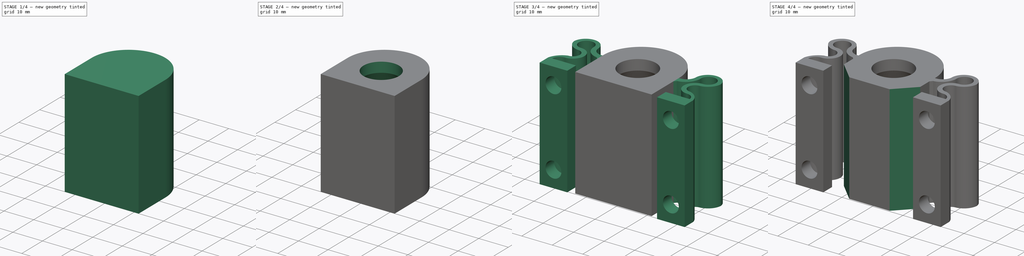
[diagram: build sequence overview — one tinted view per stage of 4, left to right]
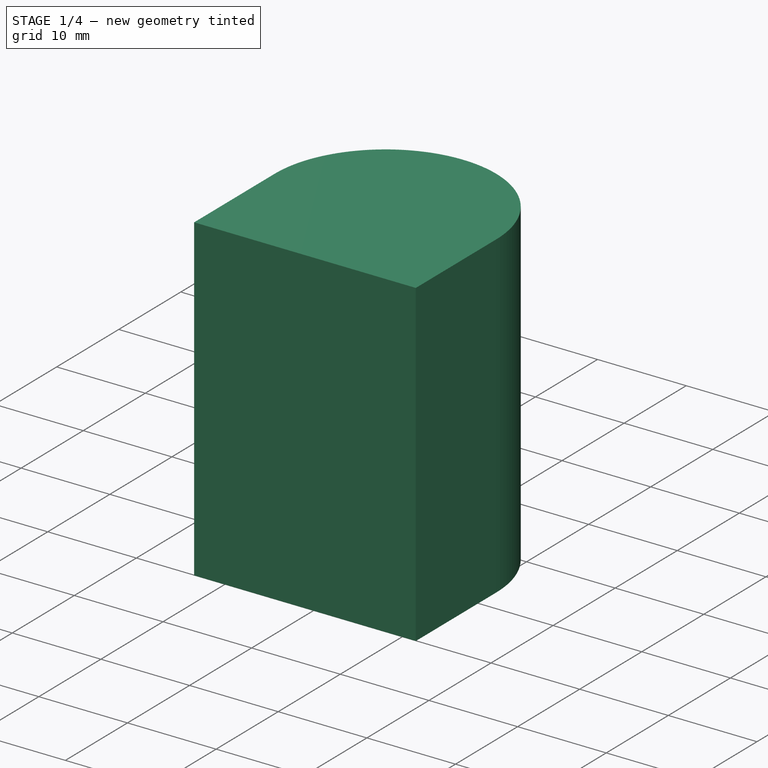
[diagram: stage 1 of 4 — iso view after this stage's code; geometry added in this stage tinted green]
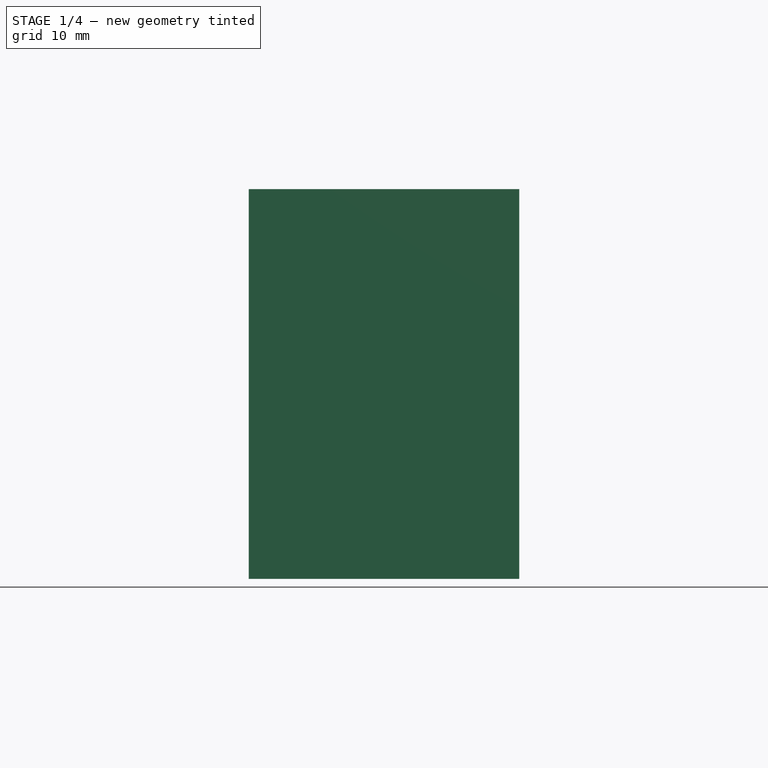
[diagram: stage 1 of 4 — front view after this stage's code; geometry added in this stage tinted green]
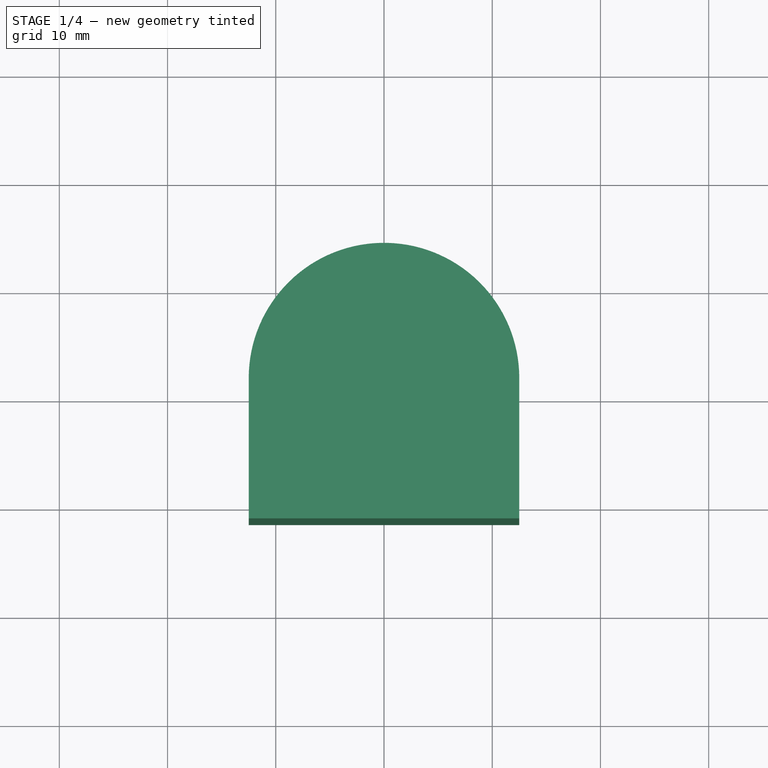
[diagram: stage 1 of 4 — top view after this stage's code; geometry added in this stage tinted green]
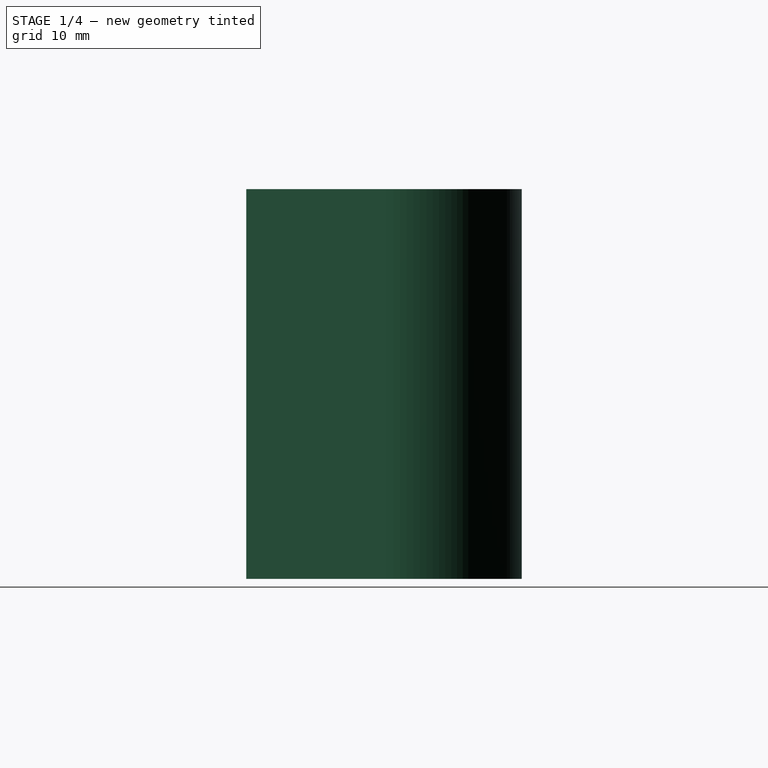
[diagram: stage 1 of 4 — right view after this stage's code; geometry added in this stage tinted green]
FCSTD DOCUMENT
Label: Z_NutSpring
objects: Sketcher::SketchObject×10, PartDesign::Pocket×6, PartDesign::Pad×3, PartDesign::Mirrored×2, PartDesign::Groove×1, PartDesign::Chamfer×1, Part::Feature×1
note: 34 computed .brp shape members not serialized (recipe doc carries the construction recipe); baked Part::Feature solids carry a one-line shape summary decoded from their .brp

FEATURE [Sketcher::SketchObject] Sketch
  sketch-geometry (5):
    g0: LineSegment StartX=12.5 StartY=1.55997 StartZ=0 EndX=12.5 EndY=-11.4 EndZ=0
    g1: LineSegment StartX=12.5 StartY=-11.4 StartZ=0 EndX=-12.5 EndY=-11.4 EndZ=0
    g2: LineSegment StartX=-12.5 StartY=-11.4 StartZ=0 EndX=-12.5 EndY=1.55997 EndZ=0
    g3: ArcOfCircle CenterX=0 CenterY=1.56 CenterZ=0 NormalX=0 NormalY=0 NormalZ=1 Radius=12.5 StartAngle=6.28318 EndAngle=9.42478
    g4: LineSegment [constr] StartX=0 StartY=1.56 StartZ=0 EndX=0 EndY=14.06 EndZ=0
  constraints (16):
    c: Coincident(g0,g1)
    c: Coincident(g1,g2)
    c: Horizontal(g1)
    c: Vertical(g0)
    c: Vertical(g2)
    c: DistanceX(g1) = -25
    c: Coincident(g3,g2)
    c: Coincident(g3,g0)
    c: Tangent(g2,g3)
    c: Tangent(g3,g0)
    c: Vertical(g4)
    c: PointOnObject(g4,g3)
    c: Coincident(g3,g4)
    c: DistanceY(g1,g4) = 25.46
    c: DistanceY(g4) = 14.06
    c: PointOnObject(g3,g-2)
FEATURE [PartDesign::Pad] Pad
  Length = 36
  Length2 = 100
  Sketch = -> Sketch
  Type = 0
FEATURE [Sketcher::SketchObject] Sketch001
  Placement = pos=(0,0,0) rot=(1,0,0;3.14159rad)
  Support = -> Pad [Face5]
  sketch-geometry (1):
    g0: Circle CenterX=0 CenterY=0 CenterZ=0 NormalX=0 NormalY=0 NormalZ=1 Radius=7.5
  constraints (2):
    c: Coincident(g0,g-1)
    c: Radius(g0) = 7.5
FEATURE [PartDesign::Pocket] Pocket
  Length = 7
  Sketch = -> Sketch001
  Type = 0
FEATURE [Sketcher::SketchObject] Sketch002
  Placement = pos=(0,0,7) rot=(1,0,0;3.14159rad)
  Support = -> Pocket [Face8]
  sketch-geometry (7):
    g0: Circle [constr] CenterX=0 CenterY=0 CenterZ=0 NormalX=0 NormalY=0 NormalZ=1 Radius=11.5
    g1: LineSegment StartX=-5.75 StartY=9.95929 StartZ=0 EndX=5.75 EndY=9.95929 EndZ=0
    g2: LineSegment StartX=5.75 StartY=9.95929 StartZ=0 EndX=11.5 EndY=0 EndZ=0
    g3: LineSegment StartX=11.5 StartY=0 StartZ=0 EndX=5.75 EndY=-9.95929 EndZ=0
    g4: LineSegment StartX=5.75 StartY=-9.95929 StartZ=0 EndX=-5.75 EndY=-9.95929 EndZ=0
    g5: LineSegment StartX=-5.75 StartY=-9.95929 StartZ=0 EndX=-11.5 EndY=0 EndZ=0
    g6: LineSegment StartX=-11.5 StartY=0 StartZ=0 EndX=-5.75 EndY=9.95929 EndZ=0
  constraints (20):
    c: Coincident(g0,g-1)
    c: Horizontal(g1)
    c: Coincident(g1,g2)
    c: Coincident(g2,g3)
    c: Coincident(g3,g4)
    c: Horizontal(g4)
    c: Coincident(g4,g5)
    c: Coincident(g5,g6)
    c: Coincident(g6,g1)
    c: Equal(g1,g6)
    c: Equal(g6,g5)
    c: Equal(g5,g4)
    c: Equal(g4,g3)
    c: Equal(g3,g2)
    c: PointOnObject(g2,g-1)
    c: PointOnObject(g5,g-1)
    c: PointOnObject(g1,g0)
    c: PointOnObject(g1,g0)
    c: PointOnObject(g2,g0)
    c: Radius(g0) = 11.5
FEATURE [PartDesign::Pocket] Pocket001
  Length = 21.1
  Sketch = -> Sketch002
  Type = 0
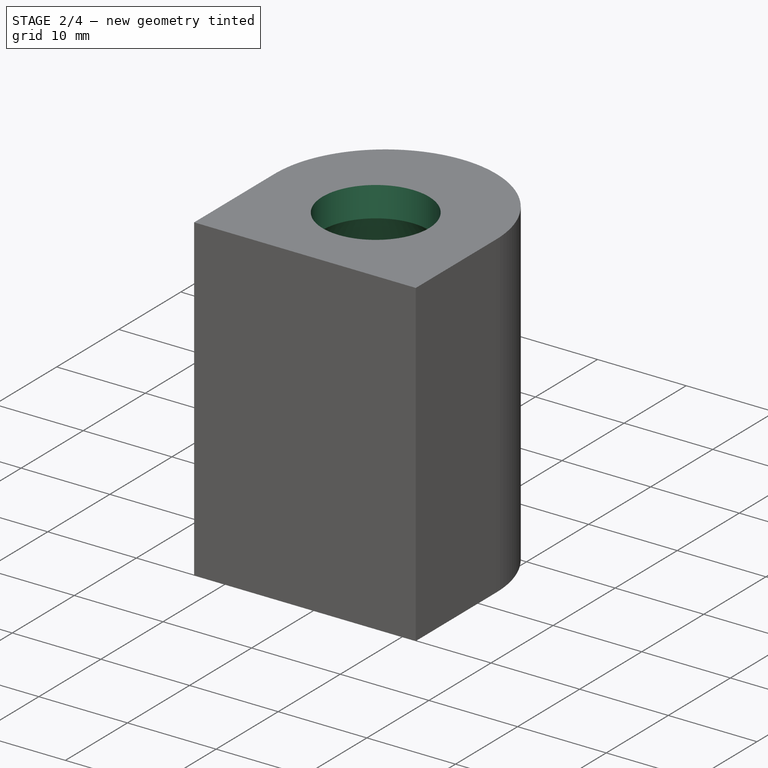
[diagram: stage 2 of 4 — iso view after this stage's code; geometry added in this stage tinted green]
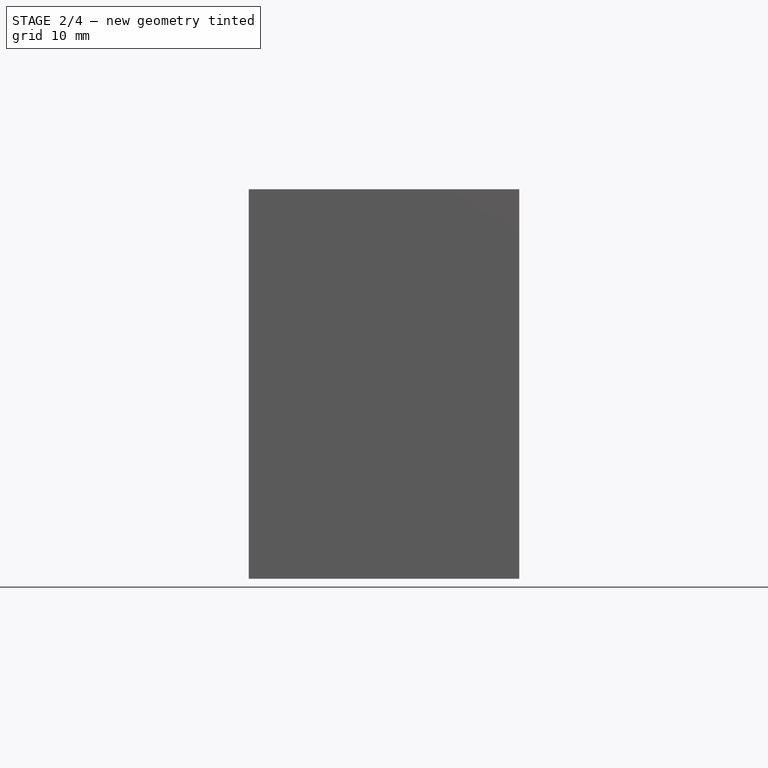
[diagram: stage 2 of 4 — front view after this stage's code; geometry added in this stage tinted green]
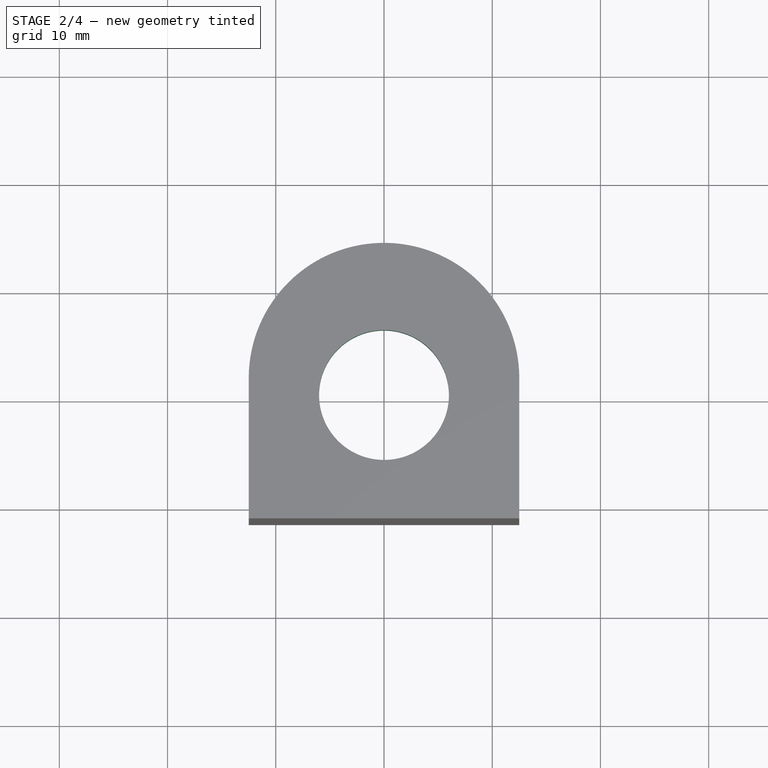
[diagram: stage 2 of 4 — top view after this stage's code; geometry added in this stage tinted green]
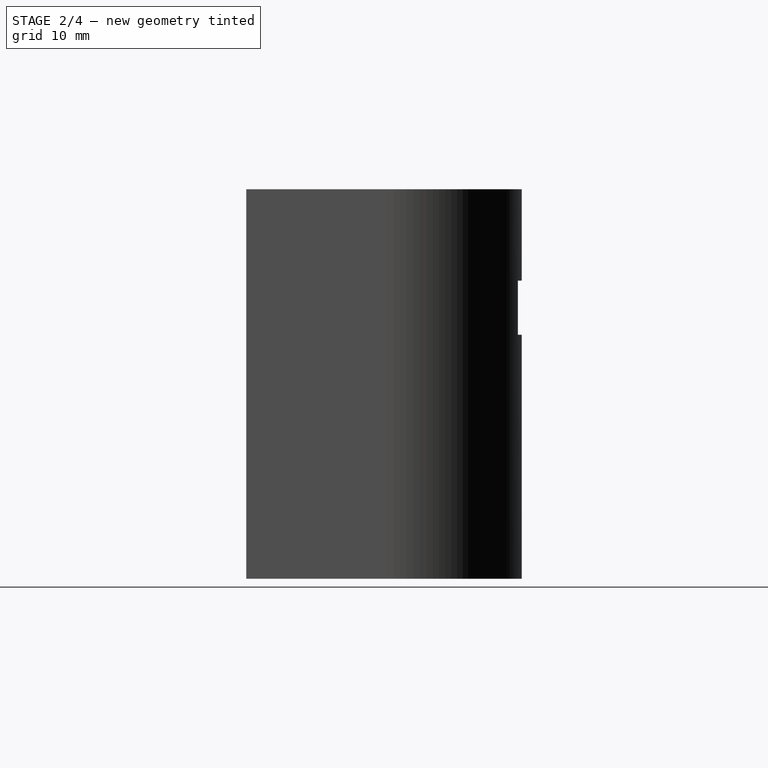
[diagram: stage 2 of 4 — right view after this stage's code; geometry added in this stage tinted green]
FEATURE [Sketcher::SketchObject] Sketch003
  Placement = pos=(0,0,36) rot=(0,0,1;0rad)
  Support = -> Pocket001 [Face5]
  sketch-geometry (4):
    g0: LineSegment StartX=-2.5 StartY=-2 StartZ=0 EndX=2.5 EndY=-2 EndZ=0
    g1: LineSegment StartX=2.5 StartY=-2 StartZ=0 EndX=2.5 EndY=0 EndZ=0
    g2: LineSegment StartX=2.5 StartY=0 StartZ=0 EndX=-2.5 EndY=0 EndZ=0
    g3: LineSegment StartX=-2.5 StartY=0 StartZ=0 EndX=-2.5 EndY=-2 EndZ=0
  constraints (12):
    c: Coincident(g0,g1)
    c: Coincident(g1,g2)
    c: Coincident(g2,g3)
    c: Coincident(g3,g0)
    c: Horizontal(g0)
    c: Horizontal(g2)
    c: Vertical(g1)
    c: Vertical(g3)
    c: Symmetric(g2,g1,g-2)
    c: DistanceY(g1) = 2
    c: DistanceX(g2) = -5
    c: PointOnObject(g2,g-1)
FEATURE [PartDesign::Pocket] Pocket002
  Length = 5
  Sketch = -> Sketch003
  Type = 1
FEATURE [Sketcher::SketchObject] Sketch007
  Placement = pos=(0,0,0) rot=(1,0,0;1.5708rad)
  Support = -> Pocket002 [Face10]
  sketch-geometry (4):
    g0: LineSegment StartX=-3 StartY=27.55 StartZ=0 EndX=3 EndY=27.55 EndZ=0
    g1: LineSegment StartX=3 StartY=27.55 StartZ=0 EndX=3 EndY=22.55 EndZ=0
    g2: LineSegment StartX=3 StartY=22.55 StartZ=0 EndX=-3 EndY=22.55 EndZ=0
    g3: LineSegment StartX=-3 StartY=22.55 StartZ=0 EndX=-3 EndY=27.55 EndZ=0
  constraints (12):
    c: Coincident(g0,g1)
    c: Coincident(g1,g2)
    c: Coincident(g2,g3)
    c: Coincident(g3,g0)
    c: Horizontal(g0)
    c: Horizontal(g2)
    c: Vertical(g1)
    c: Vertical(g3)
    c: Symmetric(g0,g0,g-2)
    c: DistanceY(g1) = 22.55
    c: DistanceX(g2) = -6
    c: DistanceY(g1) = -5
FEATURE [PartDesign::Pocket] Pocket003
  Length = 5
  Sketch = -> Sketch007
  Type = 1
FEATURE [Sketcher::SketchObject] Sketch004
  ExternalGeometry = -> [Pocket003]
  Placement = pos=(0,0,0) rot=(1,0,0;1.5708rad)
  Support = -> Pocket003 [Face14]
  sketch-geometry (4):
    g0: LineSegment StartX=0 StartY=36 StartZ=0 EndX=6 EndY=36 EndZ=0
    g1: LineSegment StartX=6 StartY=36 StartZ=0 EndX=6 EndY=32.6 EndZ=0
    g2: LineSegment StartX=6 StartY=32.6 StartZ=0 EndX=9 EndY=28.1 EndZ=0
    g3: LineSegment StartX=9 StartY=28.1 StartZ=0 EndX=0 EndY=28.1 EndZ=0
  constraints (13):
    c: Horizontal(g0)
    c: Coincident(g0,g1)
    c: Vertical(g1)
    c: Coincident(g1,g2)
    c: Coincident(g2,g3)
    c: Horizontal(g3)
    c: PointOnObject(g0,g-2)
    c: PointOnObject(g3,g-2)
    c: DistanceX(g3) = -9
    c: DistanceX(g0) = 6
    c: DistanceY(g1) = -3.4
    c: PointOnObject(g-4,g3)
    c: PointOnObject(g-3,g0)
FEATURE [PartDesign::Groove] Groove
  Angle = 360
  Axis = (0,0,1)
  Base = (0,0,0)
  ReferenceAxis = -> Sketch004 [V_Axis]
  Sketch = -> Sketch004
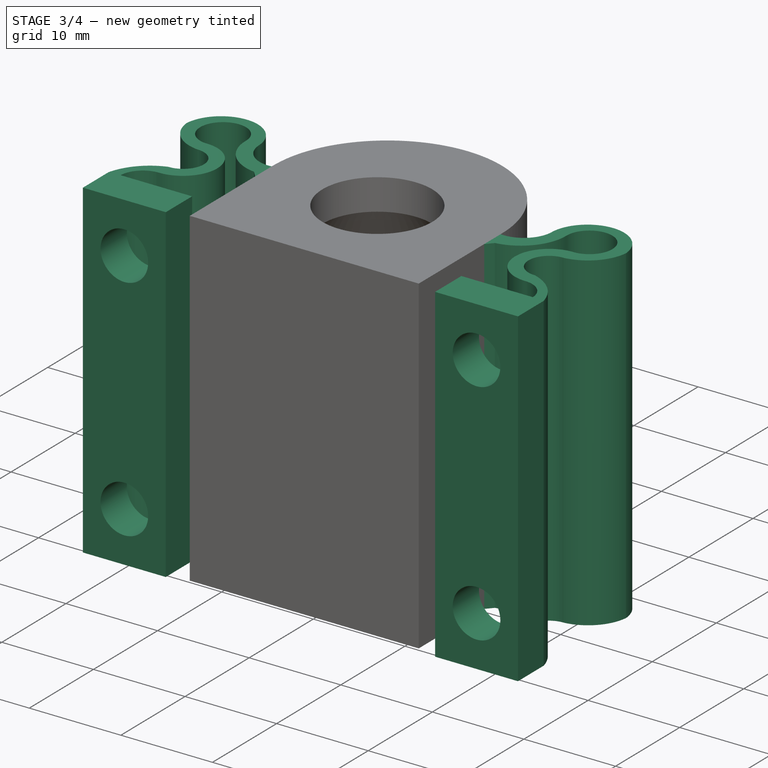
[diagram: stage 3 of 4 — iso view after this stage's code; geometry added in this stage tinted green]
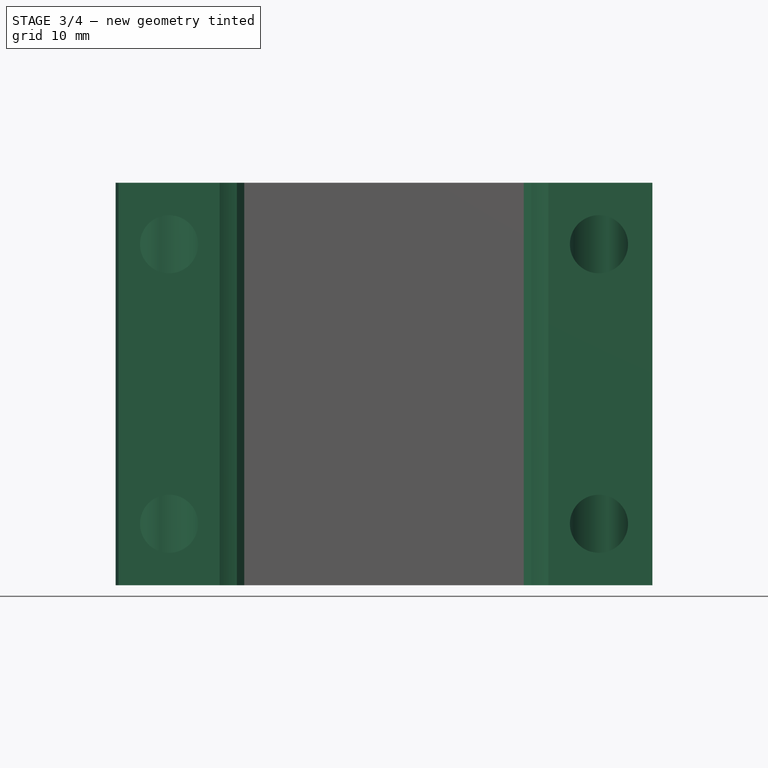
[diagram: stage 3 of 4 — front view after this stage's code; geometry added in this stage tinted green]
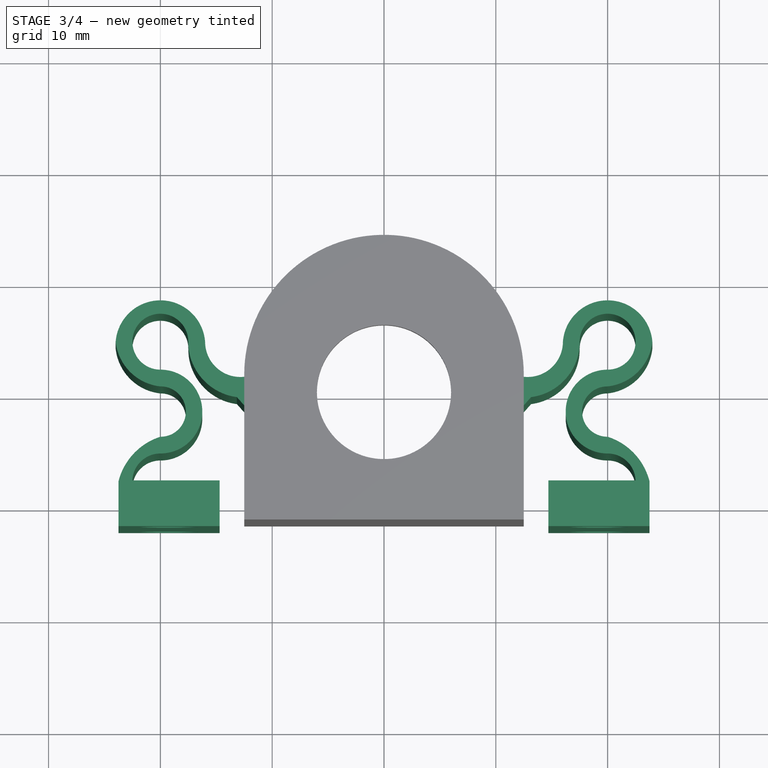
[diagram: stage 3 of 4 — top view after this stage's code; geometry added in this stage tinted green]
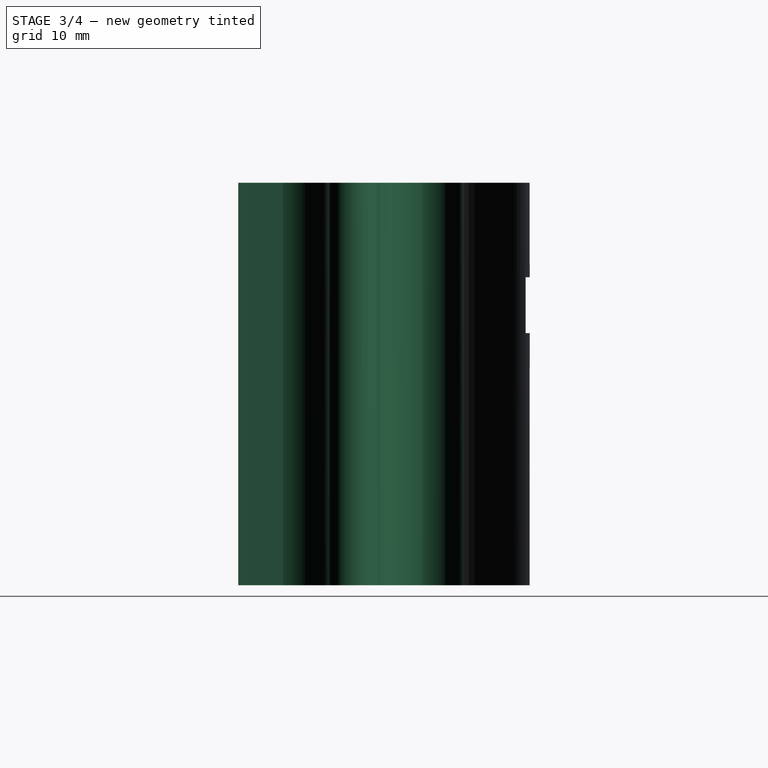
[diagram: stage 3 of 4 — right view after this stage's code; geometry added in this stage tinted green]
FEATURE [Sketcher::SketchObject] Sketch005
  ExternalGeometry = -> [Groove]
  Placement = pos=(0,0,36) rot=(0,0,1;0rad)
  Support = -> Groove [Face5]
  sketch-geometry (18):
    g0: ArcOfCircle CenterX=-12.844 CenterY=4.5 CenterZ=0 NormalX=0 NormalY=0 NormalZ=1 Radius=3.156 StartAngle=3.14159 EndAngle=4.8216
    g1: LineSegment [constr] StartX=-12.844 StartY=4.5 StartZ=0 EndX=-16 EndY=4.5 EndZ=0
    g2: LineSegment StartX=-12.5 StartY=1.3628 StartZ=0 EndX=-12.5 EndY=-1.2 EndZ=0
    g3: ArcOfCircle CenterX=-19.9998 CenterY=4.188 CenterZ=0 NormalX=0 NormalY=0 NormalZ=1 Radius=4.012 StartAngle=0.0778453 EndAngle=3.06471
    g4: ArcOfCircle CenterX=-19.513 CenterY=4.987 CenterZ=0 NormalX=0 NormalY=0 NormalZ=1 Radius=4.51377 StartAngle=3.25056 EndAngle=4.60429
    g5: ArcOfCircle CenterX=-19.9692 CenterY=-1.75021 CenterZ=0 NormalX=0 NormalY=0 NormalZ=1 Radius=2.25 StartAngle=4.6987 EndAngle=7.86767
    g6: LineSegment [constr] StartX=-20 StartY=0.499578 StartZ=0 EndX=-20 EndY=-4 EndZ=0
    g7: ArcOfCircle CenterX=-18.2759 CenterY=-9.3742 CenterZ=0 NormalX=0 NormalY=0 NormalZ=1 Radius=5.644 StartAngle=1.88124 EndAngle=2.89564
    g8: LineSegment StartX=-23.75 StartY=-8 StartZ=0 EndX=-23.75 EndY=-12 EndZ=0
    g9: LineSegment StartX=-23.75 StartY=-12 StartZ=0 EndX=-14.7 EndY=-12 EndZ=0
    g10: LineSegment StartX=-14.7 StartY=-12 StartZ=0 EndX=-14.7 EndY=-7.9 EndZ=0
    g11: LineSegment StartX=-14.7 StartY=-7.9 StartZ=0 EndX=-22.5 EndY=-7.9 EndZ=0
    g12: ArcOfCircle CenterX=-20 CenterY=4.5 CenterZ=0 NormalX=0 NormalY=0 NormalZ=1 Radius=2.5 StartAngle=0 EndAngle=4.71239
    g13: ArcOfCircle CenterX=-11.438 CenterY=4.5017 CenterZ=0 NormalX=0 NormalY=0 NormalZ=1 Radius=6.062 StartAngle=3.14187 EndAngle=3.28123
    g14: ArcOfCircle CenterX=-12.5127 CenterY=4.50183 CenterZ=0 NormalX=0 NormalY=0 NormalZ=1 Radius=5 StartAngle=3.31117 EndAngle=4.58398
    g15: LineSegment StartX=-13.153 StartY=-0.457 StartZ=0 EndX=-12.5 EndY=-1.2 EndZ=0
    g16: ArcOfCircle CenterX=-20 CenterY=-1.75 CenterZ=0 NormalX=0 NormalY=0 NormalZ=1 Radius=3.75 StartAngle=4.71239 EndAngle=7.85398
    g17: ArcOfCircle CenterX=-20 CenterY=-8.00208 CenterZ=0 NormalX=0 NormalY=0 NormalZ=1 Radius=2.50208 StartAngle=1.5708 EndAngle=3.10078
  constraints (62):
    c: Coincident(g1,g0)
    c: Coincident(g1,g0)
    c: Horizontal(g1)
    c: Coincident(g2,g0)
    c: Vertical(g2)
    c: DistanceY(g-1,g0) = 4.5
    c: DistanceX(g-1,g0) = -16
    c: Radius(g0) = 3.156
    c: Coincident(g3,g0)
    c: DistanceY(g-1,g3) = 4.188
    c: DistanceX(g0,g3) = -8
    c: Radius(g3) = 4.012
    c: Coincident(g4,g3)
    c: DistanceX(g-1,g4) = -19.513
    c: DistanceY(g-1,g4) = 4.987
    c: DistanceX(g4) = -20
    c: Coincident(g5,g4)
    c: Radius(g5) = 2.25
    c: DistanceY(g5) = -4
    c: Coincident(g6,g4)
    c: Coincident(g6,g5)
    c: Vertical(g6)
    c: Coincident(g7,g5)
    c: Coincident(g8,g7)
    c: Vertical(g8)
    c: DistanceX(g8) = -23.75
    c: Radius(g7) = 5.644
    c: DistanceY(g7) = -8
    c: DistanceY(g8) = -12
    c: Coincident(g8,g9)
    c: Horizontal(g9)
    c: Vertical(g10)
    c: DistanceX(g9) = 9.05
    c: Coincident(g10,g9)
    c: DistanceY(g10) = 4.1
    c: Coincident(g11,g10)
    c: Horizontal(g11)
    c: Radius(g12) = 2.5
    c: DistanceX(g12) = -20
    c: PointOnObject(g12,g1)
    c: Coincident(g13,g12)
    c: PointOnObject(g12,g1)
    c: Radius(g13) = 6.062
    c: Coincident(g14,g13)
    c: Radius(g14) = 5
    c: DistanceX(g13,g12) = -2.559
    c: DistanceY(g13,g12) = 0.842
    c: DistanceX(g14) = -13.153
    c: DistanceY(g14) = -0.457
    c: Coincident(g15,g14)
    c: Coincident(g15,g2)
    c: DistanceY(g2) = -1.2
    c: Coincident(g16,g12)
    c: Radius(g16) = 3.75
    c: PointOnObject(g16,g6)
    c: PointOnObject(g12,g6)
    c: PointOnObject(g16,g6)
    c: DistanceX(g11) = -7.8
    c: Coincident(g17,g16)
    c: Coincident(g17,g11)
    c: Tangent(g17,g16)
    c: PointOnObject(g-3,g2)
FEATURE [PartDesign::Pad] Pad001
  Length = 10
  Length2 = 100
  Reversed = true
  Sketch = -> Sketch005
  Type = 3
  UpToFace = -> Groove [Face4]
FEATURE [PartDesign::Mirrored] Mirrored
  Originals = -> [Pad001]
  StdMirrorPlane = YZ
FEATURE [Sketcher::SketchObject] Sketch006
  ExternalGeometry = -> [Mirrored]
  Placement = pos=(0,-12,0) rot=(1,0,0;1.5708rad)
  Support = -> Mirrored [Face50]
  sketch-geometry (4):
    g0: Circle CenterX=-19.225 CenterY=30.5 CenterZ=0 NormalX=0 NormalY=0 NormalZ=1 Radius=2.6
    g1: LineSegment [constr] StartX=-19.225 StartY=30.5 StartZ=0 EndX=-19.225 EndY=5.5 EndZ=0
    g2: Circle CenterX=-19.225 CenterY=5.5 CenterZ=0 NormalX=0 NormalY=0 NormalZ=1 Radius=2.6
    g3: LineSegment [constr] StartX=-19.225 StartY=30.5 StartZ=0 EndX=-19.225 EndY=36 EndZ=0
  constraints (10):
    c: Coincident(g1,g0)
    c: Vertical(g1)
    c: Coincident(g2,g1)
    c: Equal(g2,g0)
    c: DistanceY(g1) = -25
    c: Radius(g0) = 2.6
    c: DistanceY(g1) = 5.5
    c: Coincident(g3,g0)
    c: Vertical(g3)
    c: Symmetric(g-3,g-3,g3)
FEATURE [PartDesign::Pocket] Pocket004
  Length = 5
  Sketch = -> Sketch006
  Type = 0
FEATURE [PartDesign::Mirrored] Mirrored001
  Originals = -> [Pocket004]
  StdMirrorPlane = YZ
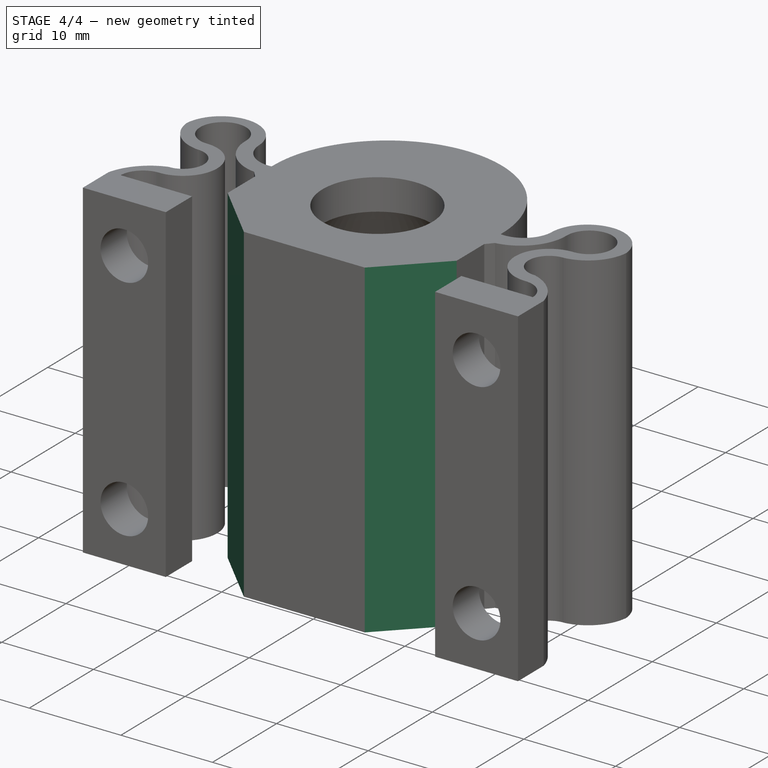
[diagram: stage 4 of 4 — iso view after this stage's code; geometry added in this stage tinted green]
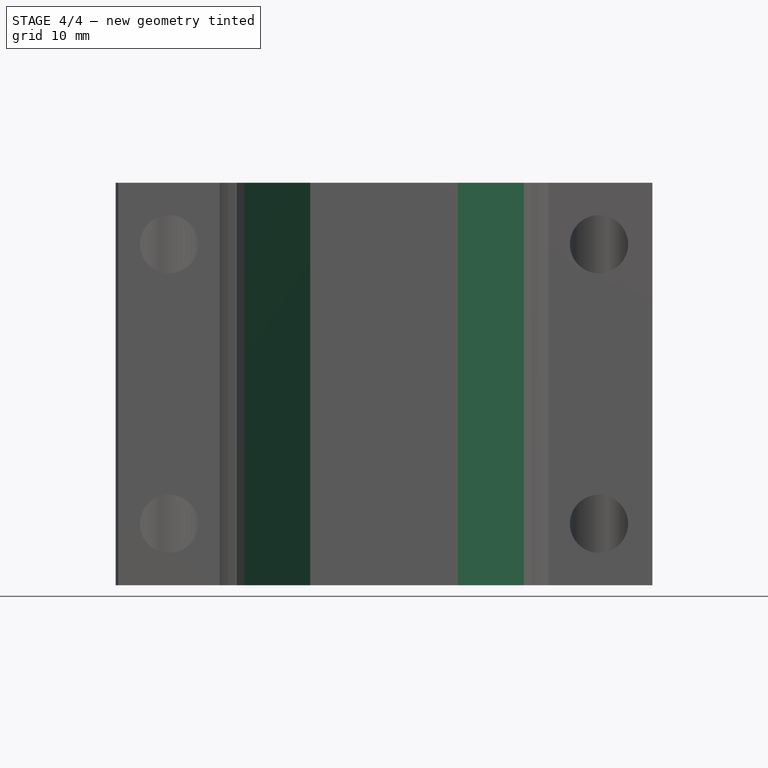
[diagram: stage 4 of 4 — front view after this stage's code; geometry added in this stage tinted green]
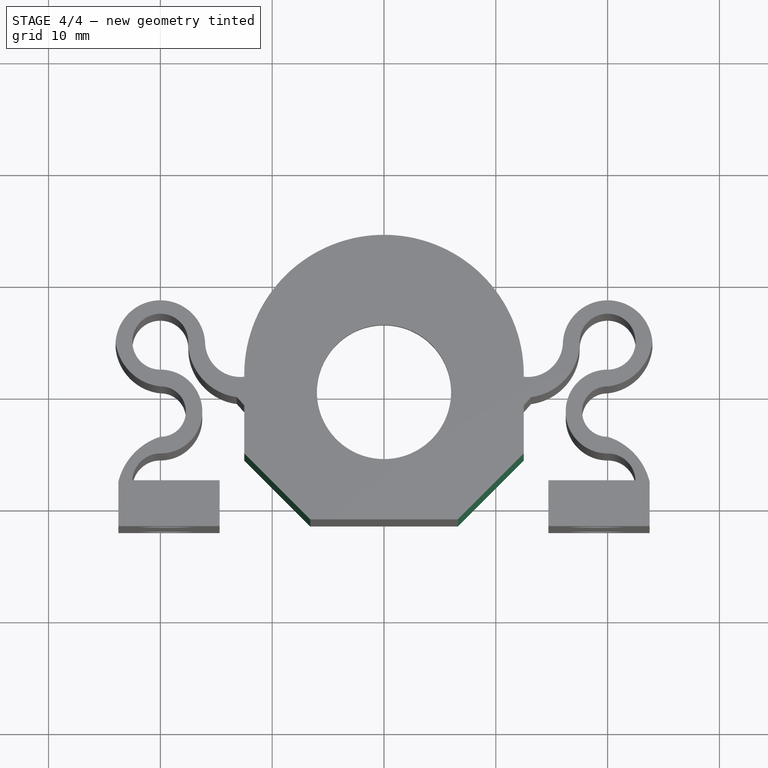
[diagram: stage 4 of 4 — top view after this stage's code; geometry added in this stage tinted green]
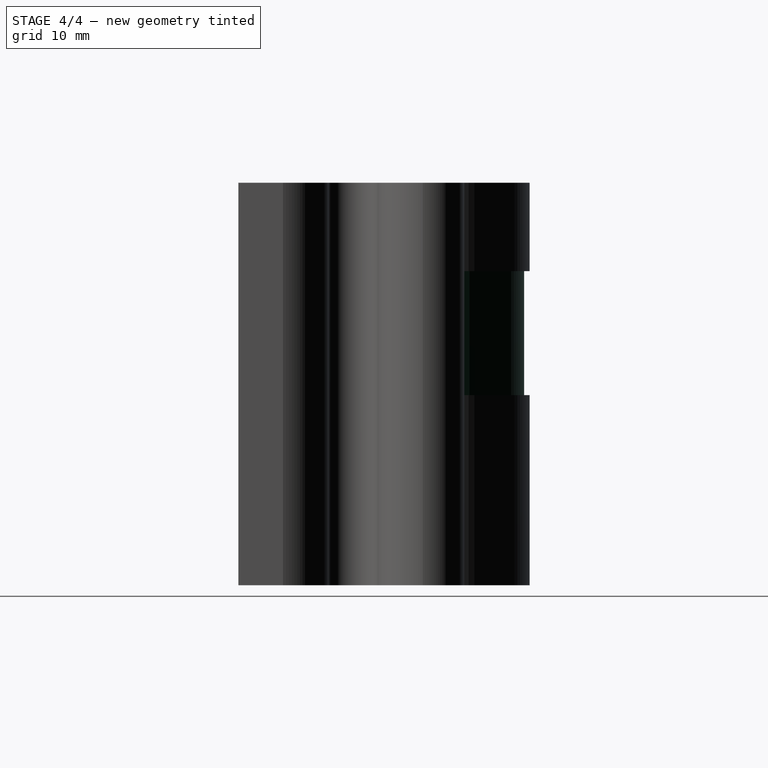
[diagram: stage 4 of 4 — right view after this stage's code; geometry added in this stage tinted green]
FEATURE [Sketcher::SketchObject] Sketch008
  ExternalGeometry = -> [Mirrored001]
  Placement = pos=(0,0,22.55) rot=(0,0,1;0rad)
  Support = -> Mirrored001 [Face3]
  sketch-geometry (6):
    g0: LineSegment StartX=13 StartY=15 StartZ=0 EndX=-13 EndY=15 EndZ=0
    g1: LineSegment StartX=-13 StartY=15 StartZ=0 EndX=-13 EndY=2.04421 EndZ=0
    g2: LineSegment StartX=-10.7662 StartY=-1 StartZ=0 EndX=10.7662 EndY=-1 EndZ=0
    g3: LineSegment StartX=13 StartY=2.04421 StartZ=0 EndX=13 EndY=15 EndZ=0
    g4: LineSegment StartX=13 StartY=2.04421 StartZ=0 EndX=10.7662 EndY=-1 EndZ=0
    g5: LineSegment StartX=-13 StartY=2.04421 StartZ=0 EndX=-10.7662 EndY=-1 EndZ=0
  constraints (18):
    c: Coincident(g0,g1)
    c: Coincident(g3,g0)
    c: Horizontal(g0)
    c: Horizontal(g2)
    c: Vertical(g1)
    c: Vertical(g3)
    c: Coincident(g1,g5)
    c: Coincident(g2,g5)
    c: Coincident(g2,g4)
    c: Coincident(g3,g4)
    c: Symmetric(g0,g0,g-2)
    c: Equal(g3,g1)
    c: Equal(g4,g5)
    c: PointOnObject(g-3,g4)
    c: DistanceY(g2) = -1
    c: PointOnObject(g-4,g4)
    c: DistanceX(g-4,g3) = 0.5
    c: DistanceY(g0) = 15
FEATURE [PartDesign::Pocket] Pocket005
  Length = 11.1
  Midplane = true
  Sketch = -> Sketch008
  Type = 0
FEATURE [Sketcher::SketchObject] Sketch009
  ExternalGeometry = -> [Pocket005]
  Placement = pos=(0,0,17) rot=(0,0,1;0rad)
  Support = -> Pocket005 [Face12]
  sketch-geometry (4):
    g0: ArcOfCircle CenterX=0 CenterY=1.56 CenterZ=0 NormalX=0 NormalY=0 NormalZ=1 Radius=12 StartAngle=0.24123 EndAngle=2.90036
    g1: ArcOfCircle CenterX=0 CenterY=1.56 CenterZ=0 NormalX=0 NormalY=0 NormalZ=1 Radius=11 StartAngle=0.24123 EndAngle=2.90036
    g2: LineSegment StartX=-11.6525 StartY=4.42676 StartZ=0 EndX=-10.6815 EndY=4.18787 EndZ=0
    g3: LineSegment StartX=10.6815 StartY=4.18787 StartZ=0 EndX=11.6525 EndY=4.42676 EndZ=0
  constraints (12):
    c: Coincident(g0,g-4)
    c: Coincident(g1,g0)
    c: Coincident(g2,g0)
    c: Coincident(g2,g1)
    c: Coincident(g3,g1)
    c: Coincident(g3,g0)
    c: Perpendicular(g3,g1)
    c: Perpendicular(g2,g1)
    c: Symmetric(g1,g1,g-2)
    c: Radius(g0) = 12
    c: Radius(g1) = 11
    c: Distance(g0,g-3) = 3.179
FEATURE [PartDesign::Pad] Pad002
  Length = 10
  Length2 = 100
  Sketch = -> Sketch009
  Type = 3
  UpToFace = -> Pocket005 [Face62]
FEATURE [PartDesign::Chamfer] Chamfer
  Base = -> Pad002 [Edge51,Edge32]
  Size = 5.9
FEATURE [Part::Feature] Chamfer001  label="PartRefine"
  shape: bbox 48 x 26.06 x 36 mm, 66 faces (baked)
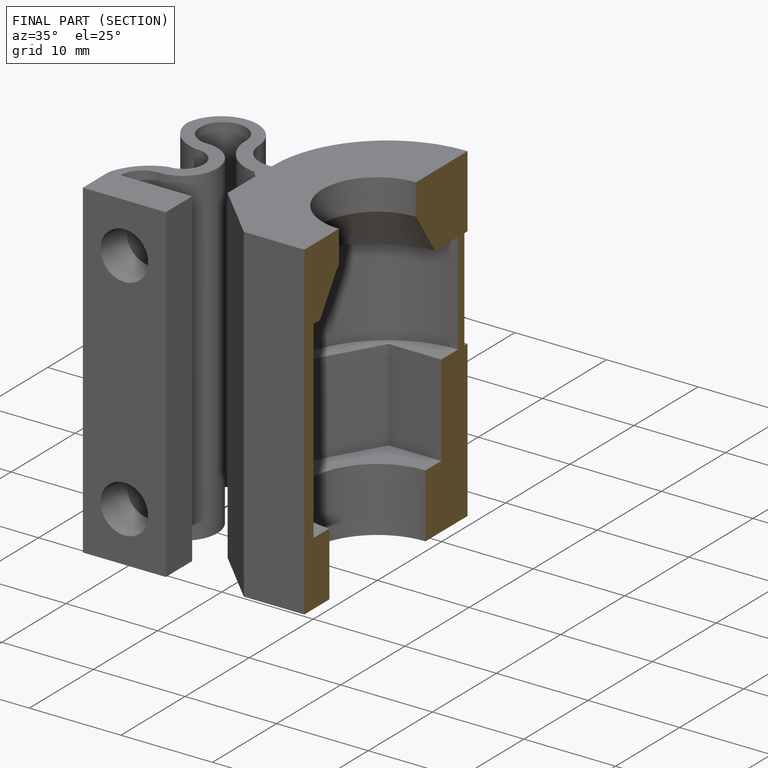
[diagram: finished part — half-section view (interior)]
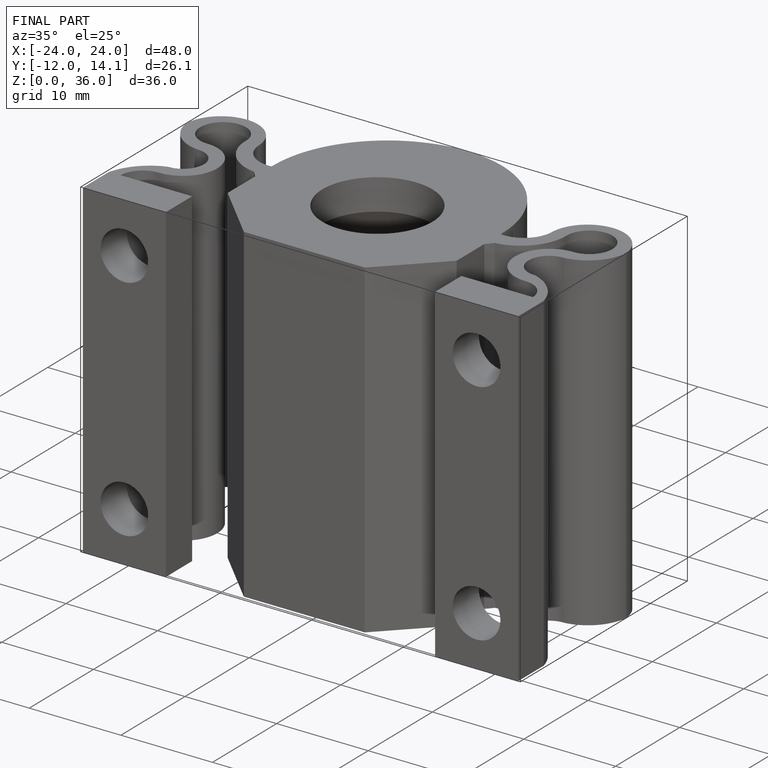
[diagram: finished part — iso view with bounding-box wireframe]
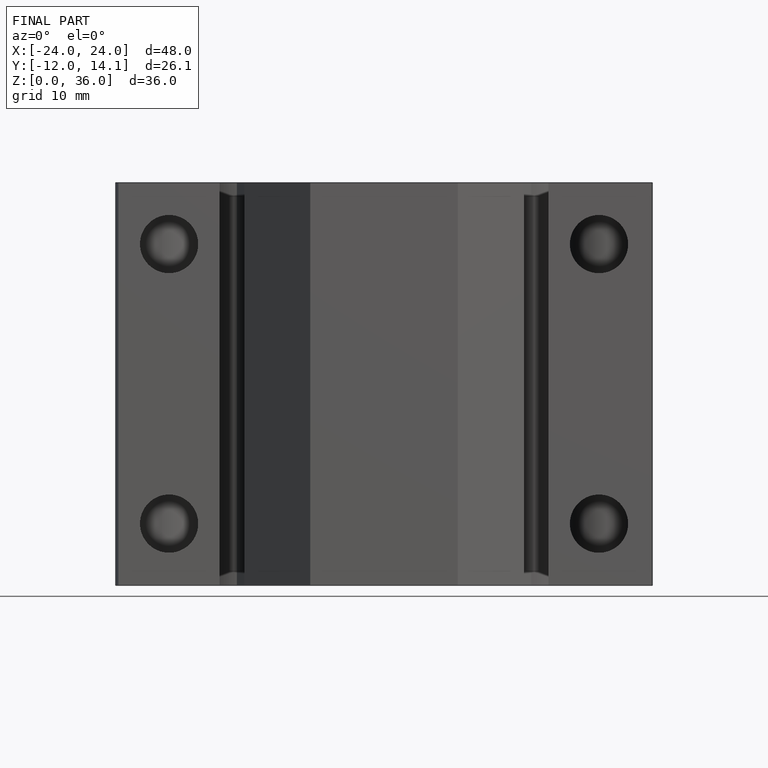
[diagram: finished part — front view with bounding-box wireframe]
